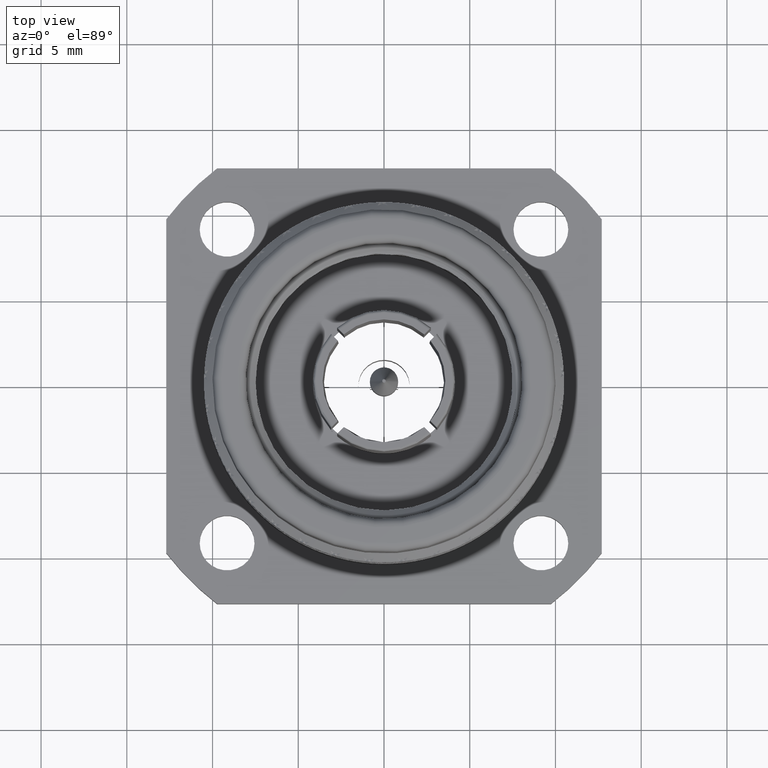
[diagram: clean part render]
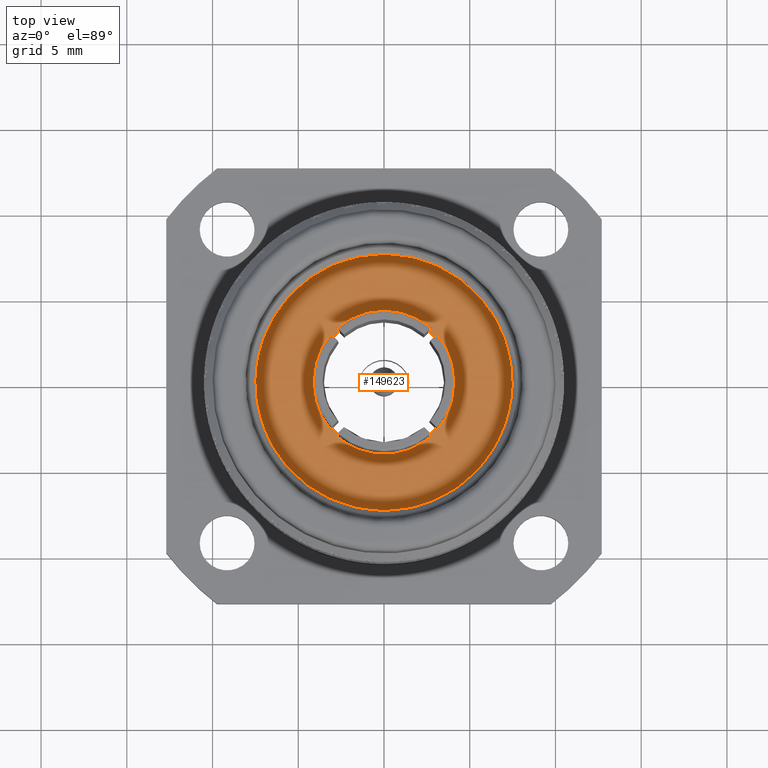
[diagram: same view with one face highlighted and labeled with its STEP entity id]
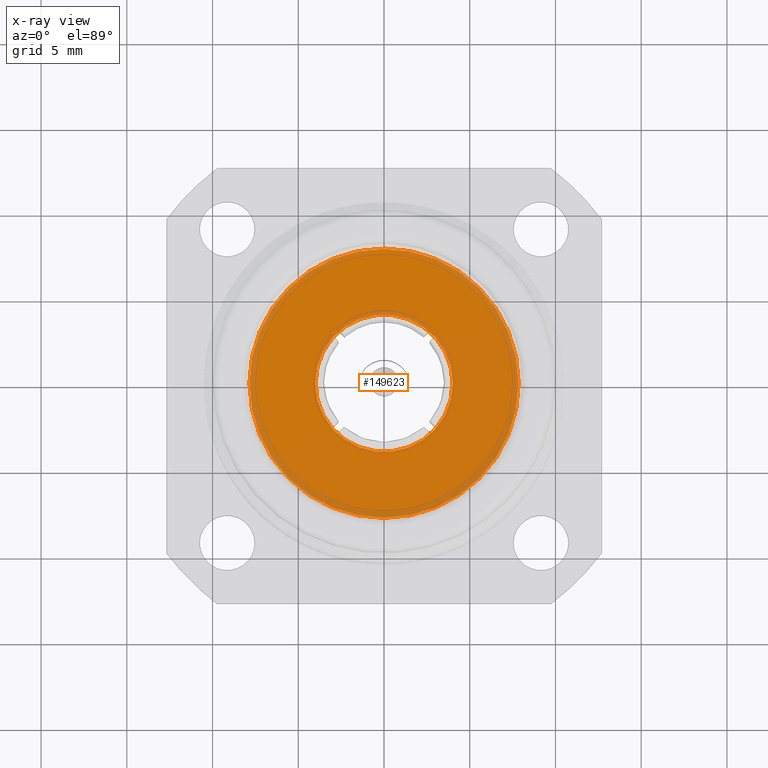
[diagram: x-ray of the same camera — body ghosted, the highlighted face saturated]
A machine part, top view. The second image highlights one B-rep face of the part: STEP entity #149623.
The next image is the same camera in x-ray: the body ghosted, the highlighted face saturated — about 13% of this face is hidden behind the body in this view.
In plain terms, the highlighted planar face has unit normal (0, 0, -1).
Its self-contained STEP definition (entity closure, byte-faithful):
#283 = CARTESIAN_POINT ( 'NONE',  ( -7.849999999999999645, 1.925929944387235853E-31, 11.00000000000000178 ) ) ;
#1785 = CIRCLE ( 'NONE', #42156, 4.000000000000000000 ) ;
#4437 = EDGE_CURVE ( 'NONE', #93742, #53682, #1785, .T. ) ;
#11174 = EDGE_LOOP ( 'NONE', ( #68234, #73202 ) ) ;
#12017 = AXIS2_PLACEMENT_3D ( 'NONE', #95383, #74069, #156287 ) ;
#20760 = EDGE_CURVE ( 'NONE', #53682, #93742, #53585, .T. ) ;
#36715 = CIRCLE ( 'NONE', #46885, 7.849999999999999645 ) ;
#42156 = AXIS2_PLACEMENT_3D ( 'NONE', #118664, #72011, #155020 ) ;
#42491 = DIRECTION ( 'NONE',  ( 0.000000000000000000, 0.000000000000000000, -1.000000000000000000 ) ) ;
#46885 = AXIS2_PLACEMENT_3D ( 'NONE', #152211, #79485, #127681 ) ;
#48881 = DIRECTION ( 'NONE',  ( -1.000000000000000000, 0.000000000000000000, 0.000000000000000000 ) ) ;
#51089 = AXIS2_PLACEMENT_3D ( 'NONE', #112072, #51211, #48881 ) ;
#51211 = DIRECTION ( 'NONE',  ( 0.000000000000000000, 0.000000000000000000, -1.000000000000000000 ) ) ;
#53585 = CIRCLE ( 'NONE', #51089, 4.000000000000000000 ) ;
#53682 = VERTEX_POINT ( 'NONE', #143039 ) ;
#60372 = VERTEX_POINT ( 'NONE', #104953 ) ;
#68234 = ORIENTED_EDGE ( 'NONE', *, *, #152988, .F. ) ;
#72011 = DIRECTION ( 'NONE',  ( 0.000000000000000000, 0.000000000000000000, -1.000000000000000000 ) ) ;
#73202 = ORIENTED_EDGE ( 'NONE', *, *, #98139, .F. ) ;
#74069 = DIRECTION ( 'NONE',  ( 0.000000000000000000, 0.000000000000000000, -1.000000000000000000 ) ) ;
#79485 = DIRECTION ( 'NONE',  ( 0.000000000000000000, 0.000000000000000000, -1.000000000000000000 ) ) ;
#82523 = AXIS2_PLACEMENT_3D ( 'NONE', #90640, #42491, #91428 ) ;
#82628 = EDGE_LOOP ( 'NONE', ( #121103, #139806 ) ) ;
#88215 = CARTESIAN_POINT ( 'NONE',  ( -4.000000000000000000, 1.925929944387235853E-31, 11.00000000000000178 ) ) ;
#90640 = CARTESIAN_POINT ( 'NONE',  ( 0.000000000000000000, 1.925929944387235853E-31, 11.00000000000000178 ) ) ;
#91428 = DIRECTION ( 'NONE',  ( -1.000000000000000000, 0.000000000000000000, 0.000000000000000000 ) ) ;
#92215 = FACE_OUTER_BOUND ( 'NONE', #11174, .T. ) ;
#93742 = VERTEX_POINT ( 'NONE', #88215 ) ;
#95383 = CARTESIAN_POINT ( 'NONE',  ( 0.000000000000000000, 1.925929944387235853E-31, 11.00000000000000178 ) ) ;
#98139 = EDGE_CURVE ( 'NONE', #60372, #107152, #36715, .T. ) ;
#104953 = CARTESIAN_POINT ( 'NONE',  ( 7.849999999999999645, 9.613477373306723330E-16, 11.00000000000000178 ) ) ;
#107152 = VERTEX_POINT ( 'NONE', #283 ) ;
#112072 = CARTESIAN_POINT ( 'NONE',  ( 0.000000000000000000, 1.925929944387235853E-31, 11.00000000000000178 ) ) ;
#118664 = CARTESIAN_POINT ( 'NONE',  ( 0.000000000000000000, 1.925929944387235853E-31, 11.00000000000000178 ) ) ;
#121103 = ORIENTED_EDGE ( 'NONE', *, *, #4437, .T. ) ;
#127681 = DIRECTION ( 'NONE',  ( -1.000000000000000000, 0.000000000000000000, 0.000000000000000000 ) ) ;
#138137 = PLANE ( 'NONE',  #82523 ) ;
#139806 = ORIENTED_EDGE ( 'NONE', *, *, #20760, .T. ) ;
#140480 = FACE_BOUND ( 'NONE', #82628, .T. ) ;
#143039 = CARTESIAN_POINT ( 'NONE',  ( 4.000000000000000000, 4.898587196589414801E-16, 11.00000000000000178 ) ) ;
#149623 = ADVANCED_FACE ( 'NONE', ( #92215, #140480 ), #138137, .F. ) ;
#150826 = CIRCLE ( 'NONE', #12017, 7.849999999999999645 ) ;
#152211 = CARTESIAN_POINT ( 'NONE',  ( 0.000000000000000000, 1.925929944387235853E-31, 11.00000000000000178 ) ) ;
#152988 = EDGE_CURVE ( 'NONE', #107152, #60372, #150826, .T. ) ;
#155020 = DIRECTION ( 'NONE',  ( -1.000000000000000000, 0.000000000000000000, 0.000000000000000000 ) ) ;
#156287 = DIRECTION ( 'NONE',  ( -1.000000000000000000, 0.000000000000000000, 0.000000000000000000 ) ) ;